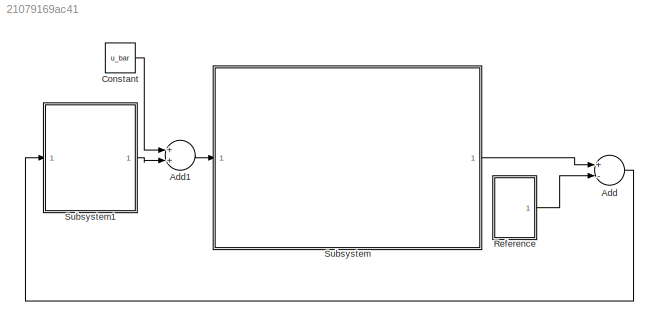
MODEL slx_21079169ac41
KIND model
CONFIG AbsTol = auto
CONFIG EnableMultiTasking = off
CONFIG FixedStep = 0.02
CONFIG MaxStep = auto
CONFIG MinStep = auto
CONFIG RelTol = 1e-3
CONFIG SampleTimeConstraint = Unconstrained
CONFIG Solver = ode4
CONFIG SolverName = ode4
CONFIG StartTime = 0.0
CONFIG StopTime = 10.0
BLOCK [Sum] Add
  InputSameDT = off
  Inputs = +-
  OutDataTypeStr = Inherit: Inherit via internal rule
  Ports = [2, 1]
  SaturateOnIntegerOverflow = off
BLOCK [Sum] Add1
  InputSameDT = off
  OutDataTypeStr = Inherit: Inherit via internal rule
  Ports = [2, 1]
  SaturateOnIntegerOverflow = off
BLOCK [Constant] Constant
  Value = u_bar
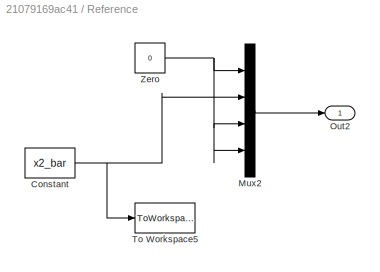
BLOCK [SubSystem] Reference
  Ports = [0, 1]
  RequestExecContextInheritance = off
BLOCK [Constant] Reference/Constant
  Value = x2_bar
BLOCK [Mux] Reference/Mux2
  DisplayOption = bar
  Ports = [4, 1]
BLOCK [Outport] Reference/Out2
  IconDisplay = Port number
BLOCK [ToWorkspace] Reference/To Workspace5
  FixptAsFi = on
  MaxDataPoints = inf
  Ports = [1]
  SampleTime = -1
  Save2DSignal = 3-D array (concatenate along third dimension)
  SaveFormat = Timeseries
  VariableName = x2bar
BLOCK [Constant] Reference/Zero
  Value = 0
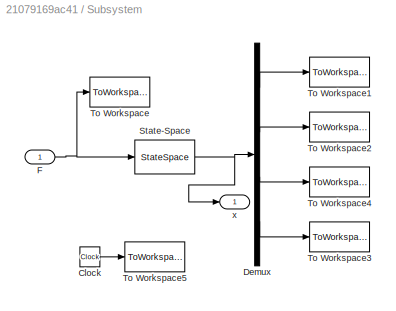
BLOCK [SubSystem] Subsystem
  Ports = [1, 1]
  RequestExecContextInheritance = off
BLOCK [Clock] Subsystem/Clock
BLOCK [Demux] Subsystem/Demux
  DisplayOption = bar
  Ports = [1, 4]
BLOCK [Inport] Subsystem/F
  IconDisplay = Port number
BLOCK [StateSpace] Subsystem/State-Space
  A = [0,0,1,0;0,0,0,1;0,-(m*g/Mc),0,0;0,g*(Mc+m)/(l*Mc),0,0]
  B = [0;0;1/Mc;1/(l*Mc)]
  C = eye(4)
  D = [0; 0; 0 ;0]
  InitialCondition = [x10;x20;x30;x40]
  Ports = [1, 1]
BLOCK [ToWorkspace] Subsystem/To Workspace
  FixptAsFi = on
  MaxDataPoints = inf
  Ports = [1]
  SampleTime = -1
  Save2DSignal = 3-D array (concatenate along third dimension)
  VariableName = Fb
BLOCK [ToWorkspace] Subsystem/To Workspace1
  FixptAsFi = on
  MaxDataPoints = inf
  Ports = [1]
  SampleTime = -1
  Save2DSignal = 3-D array (concatenate along third dimension)
  VariableName = x1b
BLOCK [ToWorkspace] Subsystem/To Workspace2
  FixptAsFi = on
  MaxDataPoints = inf
  Ports = [1]
  SampleTime = -1
  Save2DSignal = 3-D array (concatenate along third dimension)
  VariableName = x2b
BLOCK [ToWorkspace] Subsystem/To Workspace3
  FixptAsFi = on
  MaxDataPoints = inf
  Ports = [1]
  SampleTime = -1
  Save2DSignal = 3-D array (concatenate along third dimension)
  VariableName = x4b
BLOCK [ToWorkspace] Subsystem/To Workspace4
  FixptAsFi = on
  MaxDataPoints = inf
  Ports = [1]
  SampleTime = -1
  Save2DSignal = 3-D array (concatenate along third dimension)
  VariableName = x3b
BLOCK [ToWorkspace] Subsystem/To Workspace5
  FixptAsFi = on
  MaxDataPoints = inf
  Ports = [1]
  SampleTime = -1
  Save2DSignal = 3-D array (concatenate along third dimension)
  VariableName = tb
BLOCK [Outport] Subsystem/x
  IconDisplay = Port number
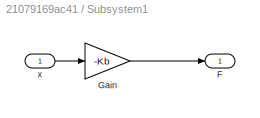
BLOCK [SubSystem] Subsystem1
  Ports = [1, 1]
  RequestExecContextInheritance = off
BLOCK [Outport] Subsystem1/F
  IconDisplay = Port number
BLOCK [Gain] Subsystem1/Gain
  Gain = -Kb
  Multiplication = Matrix(K*u)
  OutDataTypeStr = Inherit: Inherit via internal rule
  ParamDataTypeStr = Inherit: Inherit via internal rule
  SaturateOnIntegerOverflow = off
BLOCK [Inport] Subsystem1/x
  IconDisplay = Port number
LINE Add1:1 -> Subsystem:1
LINE Add:1 -> Subsystem1:1
LINE Constant:1 -> Add1:1
NET Reference/Constant:1 -> Reference/Mux2:2, Reference/To Workspace5:1
LINE Reference/Mux2:1 -> Reference/Out2:1
NET Reference/Zero:1 -> Reference/Mux2:1, Reference/Mux2:3, Reference/Mux2:4
LINE Reference:1 -> Add:2
LINE Subsystem/Clock:1 -> Subsystem/To Workspace5:1
LINE Subsystem/Demux:1 -> Subsystem/To Workspace1:1
LINE Subsystem/Demux:2 -> Subsystem/To Workspace2:1
LINE Subsystem/Demux:3 -> Subsystem/To Workspace4:1
LINE Subsystem/Demux:4 -> Subsystem/To Workspace3:1
NET Subsystem/F:1 -> Subsystem/State-Space:1, Subsystem/To Workspace:1
NET Subsystem/State-Space:1 -> Subsystem/Demux:1, Subsystem/x:1
LINE Subsystem1/Gain:1 -> Subsystem1/F:1
LINE Subsystem1/x:1 -> Subsystem1/Gain:1
LINE Subsystem1:1 -> Add1:2
LINE Subsystem:1 -> Add:1
note: NET lines group one-source signal fan-out (src -> all destinations, sorted); 1:1 wires keep LINE
